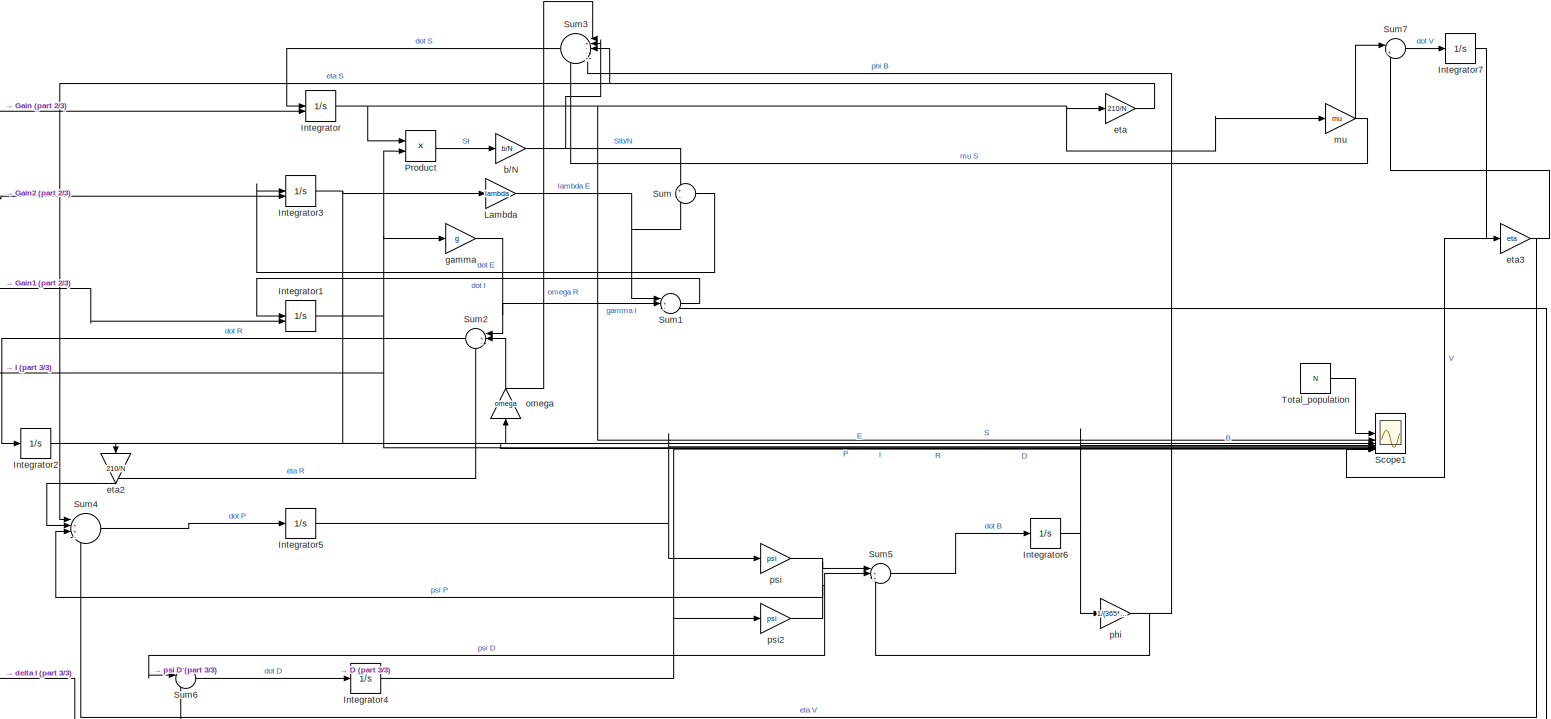
[diagram: root canvas - part 1/3, most of the canvas]
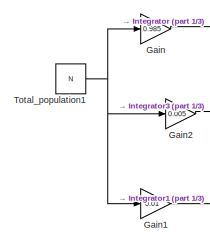
[diagram: root canvas - part 2/3, top left region]
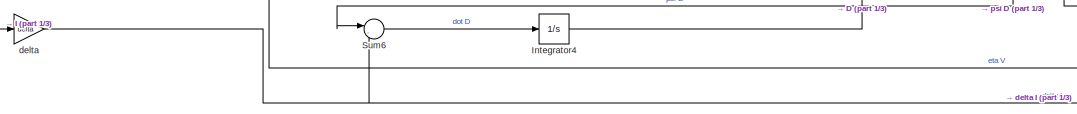
[diagram: root canvas - part 3/3, bottom left region]
MODEL slx_4a0818991dae
KIND model
CONFIG AbsTol = auto
CONFIG EnableMultiTasking = off
CONFIG FixedStep = auto
CONFIG MaxStep = auto
CONFIG MinStep = auto
CONFIG RelTol = 1e-3
CONFIG SampleTimeConstraint = Unconstrained
CONFIG SolverName = VariableStepAuto
CONFIG StartTime = 0.0
CONFIG StopTime = 365
BLOCK [Gain] Gain
  Gain = 0.985
BLOCK [Gain] Gain1
  Gain = 0.01
BLOCK [Gain] Gain2
  Gain = 0.005
BLOCK [Integrator] Integrator
  InitialCondition = N
  InitialConditionSource = external
BLOCK [Integrator] Integrator1
  InitialConditionSource = external
BLOCK [Integrator] Integrator2
BLOCK [Integrator] Integrator3
  InitialConditionSource = external
BLOCK [Integrator] Integrator4
BLOCK [Integrator] Integrator5
BLOCK [Integrator] Integrator6
BLOCK [Integrator] Integrator7
BLOCK [Gain] Lambda
  Gain = lambda
BLOCK [Product] Product
BLOCK [Scope] Scope1
  Floating = off
  NumInputPorts = 9
  ScopeSpecificationString = Simulink.scopes.TimeScopeBlockCfg('CurrentConfiguration', extmgr.ConfigurationSet(extmgr.Configuration('Core','General UI',true,'FigureColor',[1 1 1]),extmgr.Configuration('Core','Source UI',true),extmgr.Configuration('Sources','WiredSimulink',true,'DataLoggingVariableName','ScopeData1'),extmgr.Configuration('Visuals','Time Domain',true,'SerializedDisplays',{struct('MinYLimReal','-937500.00000','M...<+2626ch>
BLOCK [Sum] Sum
  Inputs = +-
  NameLocation = top
BLOCK [Sum] Sum1
  Inputs = |+--
BLOCK [Sum] Sum2
  Inputs = |+--
  NameLocation = top
BLOCK [Sum] Sum3
  Inputs = |+--+-
  NameLocation = top
BLOCK [Sum] Sum4
  Inputs = |++-+
BLOCK [Sum] Sum5
  Inputs = |++-
BLOCK [Sum] Sum6
  Inputs = |-+
BLOCK [Sum] Sum7
  Inputs = |+-
BLOCK [Constant] Total_population
  Value = N
BLOCK [Constant] Total_population1
  Value = N
BLOCK [Gain] b//N
  Gain = b/N
BLOCK [Gain] delta
  Gain = delta
BLOCK [Gain] eta
  Gain = 210/N
BLOCK [Gain] eta2
  Gain = 210/N
  NameLocation = left
BLOCK [Gain] eta3
  Gain = eta
BLOCK [Gain] gamma
  Gain = g
BLOCK [Gain] mu
  Gain = mu
BLOCK [Gain] omega
  Gain = omega
  NameLocation = right
BLOCK [Gain] phi
  Gain = 1/(365*5)
BLOCK [Gain] psi
  Gain = psi
BLOCK [Gain] psi2
  Gain = psi
LINE Gain1:1 -> Integrator1:2
LINE Gain2:1 -> Integrator3:2
LINE Gain:1 -> Integrator:2
NET Integrator1:1 -> Product:2, Scope1:6, delta:1, gamma:1
NET Integrator2:1 -> Scope1:7, eta2:1, omega:1
NET Integrator3:1 -> Lambda:1, Scope1:3
NET Integrator4:1 -> Scope1:8, psi2:1
NET Integrator5:1 -> Scope1:5, psi:1
NET Integrator6:1 -> Scope1:4, phi:1
NET Integrator7:1 -> Scope1:9, eta3:1
NET Integrator:1 -> Product:1, Scope1:2, eta:1, mu:1
NET Lambda:1 -> Sum1:1, Sum:2
LINE Product:1 -> b//N:1
LINE Sum1:1 -> Integrator1:1
LINE Sum2:1 -> Integrator2:1
LINE Sum3:1 -> Integrator:1
LINE Sum4:1 -> Integrator5:1
LINE Sum5:1 -> Integrator6:1
LINE Sum6:1 -> Integrator4:1
LINE Sum7:1 -> Integrator7:1
LINE Sum:1 -> Integrator3:1
NET Total_population1:1 -> Gain1:1, Gain2:1, Gain:1
LINE Total_population:1 -> Scope1:1
NET b//N:1 -> Sum3:2, Sum:1
NET delta:1 -> Sum1:3, Sum6:2
NET eta2:1 -> Sum2:3, Sum4:2
NET eta3:1 -> Sum4:4, Sum7:2
NET eta:1 -> Sum3:3, Sum4:1
NET gamma:1 -> Sum1:2, Sum2:1
NET mu:1 -> Sum3:5, Sum7:1
NET omega:1 -> Sum2:2, Sum3:1
NET phi:1 -> Sum3:4, Sum5:3
NET psi2:1 -> Sum5:2, Sum6:1
NET psi:1 -> Sum4:3, Sum5:1
note: NET lines group one-source signal fan-out (src -> all destinations, sorted); 1:1 wires keep LINE
